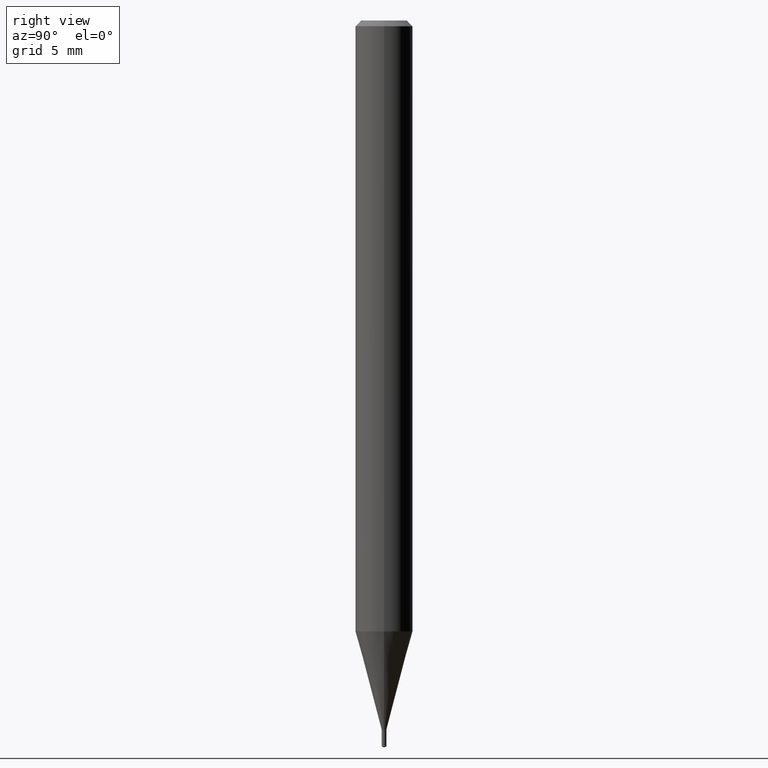
[diagram: clean part render]
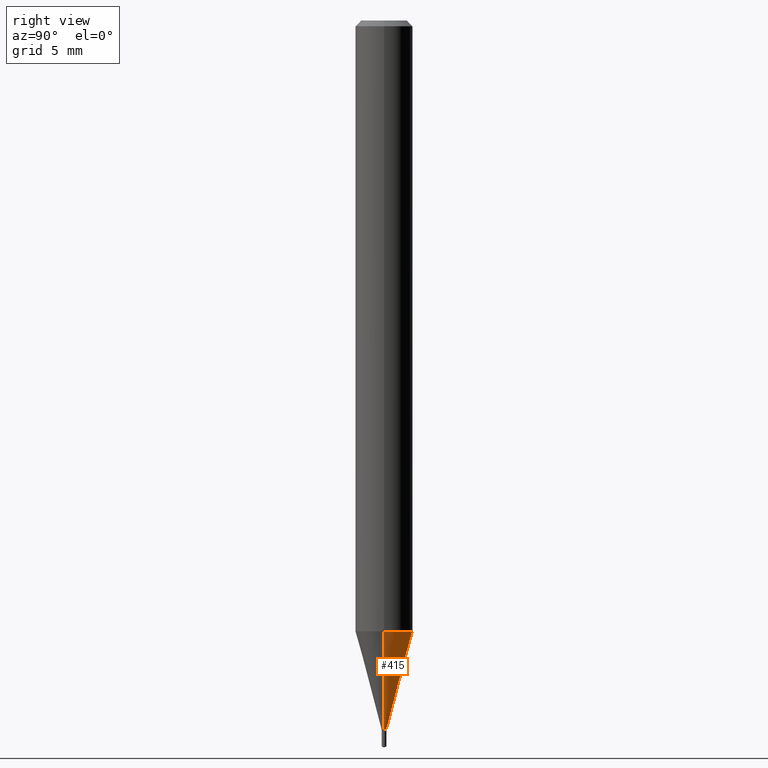
[diagram: same view with one face highlighted and labeled with its STEP entity id]
A machine part, right view. The second image highlights one B-rep face of the part: STEP entity #415.
In plain terms, the highlighted conical surface has half-angle 15 deg.
Its self-contained STEP definition (entity closure, byte-faithful):
#14 = EDGE_CURVE ( 'NONE', #232, #302, #92, .T. ) ;
#15 = DIRECTION ( 'NONE',  ( -2.445468806185136597E-29, 3.491481338843145583E-15, 1.000000000000000000 ) ) ;
#58 = CARTESIAN_POINT ( 'NONE',  ( 0.004899999999999998107, -5.128986086760580222E-15, -1.459199999999999831 ) ) ;
#74 = EDGE_CURVE ( 'NONE', #162, #302, #371, .T. ) ;
#75 = DIRECTION ( 'NONE',  ( 0.2588190451025211836, 1.565188264969622559E-15, 0.9659258262890679791 ) ) ;
#80 = DIRECTION ( 'NONE',  ( 1.000000000000000000, -6.982962677686268288E-15, 0.000000000000000000 ) ) ;
#84 = VECTOR ( 'NONE', #316, 39.37007874015748854 ) ;
#85 = CONICAL_SURFACE ( 'NONE', #212, 0.004899999999999998107, 0.2617993877991499074 ) ;
#86 = CARTESIAN_POINT ( 'NONE',  ( -0.05905000000000017180, -3.969598695798013952E-15, -1.257109448770144855 ) ) ;
#92 = CIRCLE ( 'NONE', #442, 0.05905000000000017180 ) ;
#98 = LINE ( 'NONE', #413, #483 ) ;
#103 = EDGE_CURVE ( 'NONE', #397, #162, #373, .T. ) ;
#137 = DIRECTION ( 'NONE',  ( 1.000000000000000000, -6.982962677686196502E-15, 0.000000000000000000 ) ) ;
#140 = CARTESIAN_POINT ( 'NONE',  ( -0.004899999999999998107, -5.061698716257093659E-15, -1.459199999999999831 ) ) ;
#141 = EDGE_CURVE ( 'NONE', #397, #232, #98, .T. ) ;
#162 = VERTEX_POINT ( 'NONE', #140 ) ;
#174 = EDGE_LOOP ( 'NONE', ( #262, #359, #402, #439 ) ) ;
#189 = DIRECTION ( 'NONE',  ( -2.445468806185136597E-29, 3.491481338843145583E-15, 1.000000000000000000 ) ) ;
#202 = CARTESIAN_POINT ( 'NONE',  ( 3.568428081985351240E-29, -5.094769569639917175E-15, -1.459199999999999831 ) ) ;
#210 = CARTESIAN_POINT ( 'NONE',  ( -0.004899999999999998107, -5.059952975587672945E-15, -1.459199999999999831 ) ) ;
#212 = AXIS2_PLACEMENT_3D ( 'NONE', #202, #15, #430 ) ;
#225 = CARTESIAN_POINT ( 'NONE',  ( 3.568428081985351240E-29, -5.094769569639917175E-15, -1.459199999999999831 ) ) ;
#232 = VERTEX_POINT ( 'NONE', #378 ) ;
#262 = ORIENTED_EDGE ( 'NONE', *, *, #103, .T. ) ;
#302 = VERTEX_POINT ( 'NONE', #86 ) ;
#316 = DIRECTION ( 'NONE',  ( -0.2588190451025211836, 5.211531920934547886E-15, 0.9659258262890679791 ) ) ;
#359 = ORIENTED_EDGE ( 'NONE', *, *, #74, .T. ) ;
#371 = LINE ( 'NONE', #210, #84 ) ;
#373 = CIRCLE ( 'NONE', #390, 0.004899999999999998107 ) ;
#378 = CARTESIAN_POINT ( 'NONE',  ( 0.05905000000000017180, -4.801518127381729154E-15, -1.257109448770144855 ) ) ;
#390 = AXIS2_PLACEMENT_3D ( 'NONE', #225, #189, #137 ) ;
#397 = VERTEX_POINT ( 'NONE', #58 ) ;
#402 = ORIENTED_EDGE ( 'NONE', *, *, #14, .F. ) ;
#413 = CARTESIAN_POINT ( 'NONE',  ( 0.004899999999999998107, -5.128986086760580222E-15, -1.459199999999999831 ) ) ;
#415 = ADVANCED_FACE ( 'NONE', ( #426 ), #85, .T. ) ;
#419 = DIRECTION ( 'NONE',  ( -2.445468806185136597E-29, 3.491481338843145583E-15, 1.000000000000000000 ) ) ;
#426 = FACE_OUTER_BOUND ( 'NONE', #174, .T. ) ;
#430 = DIRECTION ( 'NONE',  ( 1.000000000000000000, -6.982962677686196502E-15, 0.000000000000000000 ) ) ;
#439 = ORIENTED_EDGE ( 'NONE', *, *, #141, .F. ) ;
#442 = AXIS2_PLACEMENT_3D ( 'NONE', #457, #419, #80 ) ;
#457 = CARTESIAN_POINT ( 'NONE',  ( 3.074221942927981307E-29, -4.389174181264353445E-15, -1.257109448770144855 ) ) ;
#483 = VECTOR ( 'NONE', #75, 39.37007874015748854 ) ;